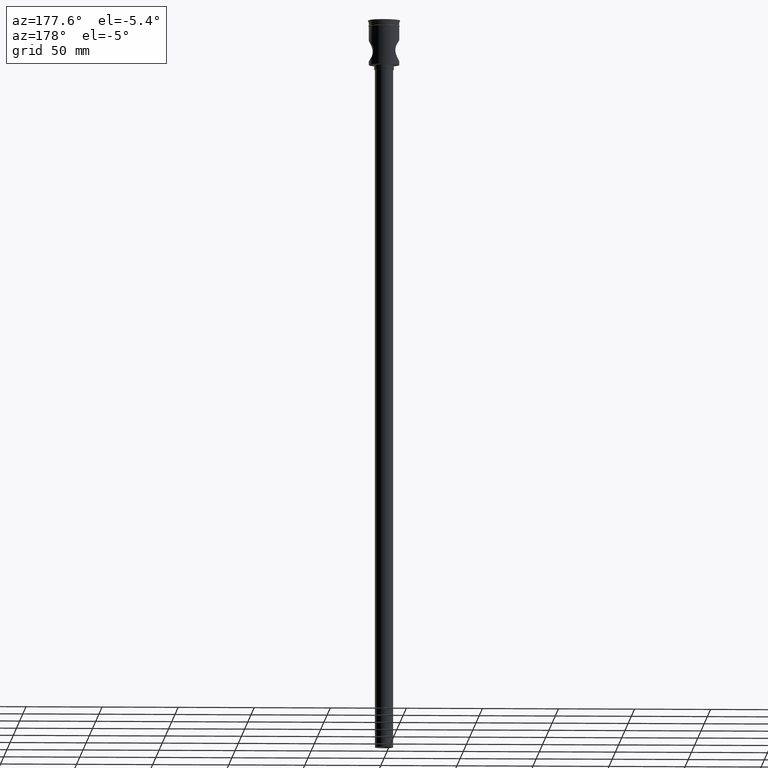
[diagram: clean part render]
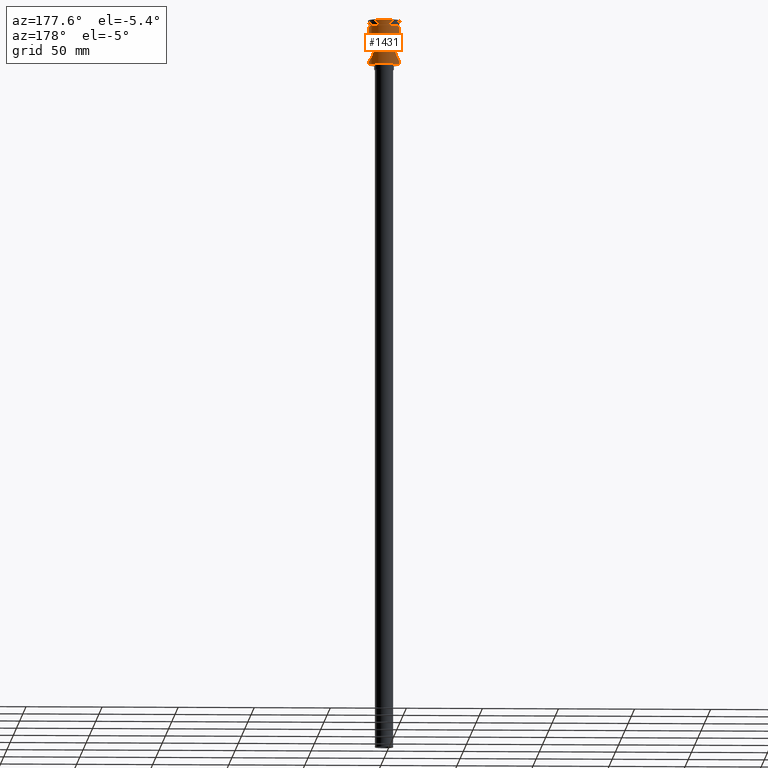
[diagram: same view with one face highlighted and labeled with its STEP entity id]
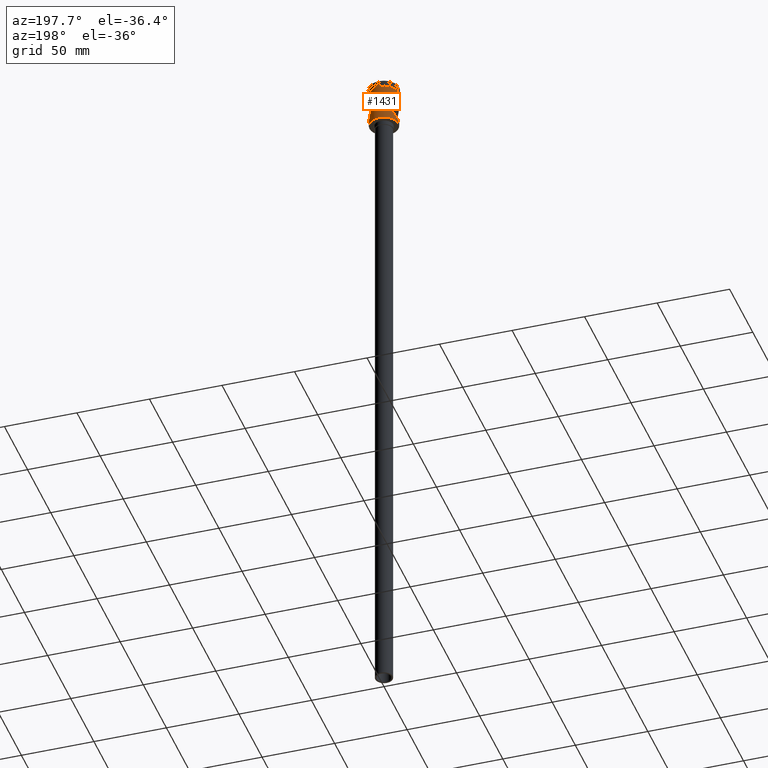
[diagram: same view with one face highlighted and labeled with its STEP entity id]
A machine part, auxiliary view. The second image highlights one B-rep face of the part: STEP entity #1431.
A second angle (auxiliary view) of the same face is appended — the face is thin or edge-on in the first view.
In plain terms, the highlighted cylindrical surface (edge-blend (fillet) strip) has radius 10 mm, axis along (-0, -0, 1).
Its self-contained STEP definition (entity closure, byte-faithful):
#1 = CARTESIAN_POINT ( 'NONE',  ( 7.495754172928653425, 6.623269820279323206, -17.68917710553390421 ) ) ;
#13 = CARTESIAN_POINT ( 'NONE',  ( 8.500359578522527215, 5.279417043634754947, -24.61763755135371312 ) ) ;
#14 = CARTESIAN_POINT ( 'NONE',  ( -7.500597748671954612, 6.614342876288898054, -17.69704926583546722 ) ) ;
#21 = ORIENTED_EDGE ( 'NONE', *, *, #403, .F. ) ;
#23 = CARTESIAN_POINT ( 'NONE',  ( 7.964400624432384390, 6.054727537725132613, -23.54044438658495508 ) ) ;
#24 = CARTESIAN_POINT ( 'NONE',  ( -7.141989287018506438, 6.999427809131203659, -20.49012689816927946 ) ) ;
#31 = CARTESIAN_POINT ( 'NONE',  ( 7.153700441637879770, 6.987541224765998926, -20.48080140017840733 ) ) ;
#39 = FACE_OUTER_BOUND ( 'NONE', #535, .T. ) ;
#59 = CARTESIAN_POINT ( 'NONE',  ( 7.967226261725709691, 6.044961550507583325, -16.46329765270407108 ) ) ;
#67 = CARTESIAN_POINT ( 'NONE',  ( 8.857763224790600631, 4.655166966848104160, -14.75332674821394185 ) ) ;
#93 = CARTESIAN_POINT ( 'NONE',  ( 9.999999999999994671, 0.000000000000000000, -27.00000000000001066 ) ) ;
#95 = CARTESIAN_POINT ( 'NONE',  ( -9.347318963212909892, 3.576349491498996613, -13.96584429441086250 ) ) ;
#101 = CARTESIAN_POINT ( 'NONE',  ( 9.999999999999994671, 0.000000000000000000, -27.00000000000001066 ) ) ;
#110 = CARTESIAN_POINT ( 'NONE',  ( 9.485754788391535186, 3.172574074835096791, -13.75608760595409663 ) ) ;
#116 = CARTESIAN_POINT ( 'NONE',  ( 9.493823586986472662, 3.171854784083770085, -26.25704949909892250 ) ) ;
#119 = CARTESIAN_POINT ( 'NONE',  ( 7.236111701560244747, 6.902383710959966834, -21.18811620976742915 ) ) ;
#124 = CARTESIAN_POINT ( 'NONE',  ( 7.503273641266415162, 6.611317046147628496, -22.31171733569519944 ) ) ;
#125 = B_SPLINE_CURVE_WITH_KNOTS ( 'NONE', 3,
 ( #101, #565, #933, #577, #703, #116, #1332, #852, #1076, #13, #1312, #23, #245, #134, #124, #1071, #1497, #119, #926, #31, #1210, #1051, #336, #613, #698, #1177, #1, #1059, #790, #59, #1470, #1123, #539, #67, #1468, #1355, #276, #110, #965, #1100, #369, #1319, #1115, #874, #1363, #295 ),
 .UNSPECIFIED., .F., .F.,
 ( 4, 2, 2, 2, 2, 2, 2, 2, 2, 2, 2, 2, 2, 2, 2, 2, 2, 2, 2, 2, 2, 2, 4 ),
 ( 0.000000000000000000, 0.001421073207666945183, 0.002842146415333890366, 0.004263219623000837066, 0.005684292830667782466, 0.007105366038334726998, 0.008526439246001672398, 0.009236975849835149868, 0.009947512453668627339, 0.01065804905750210654, 0.01136858566133558401, 0.01207912226516906322, 0.01278965886900253895, 0.01421073207666949390, 0.01492126868050296790, 0.01563180528433644190, 0.01705287849200338296, 0.01847395169967032749, 0.01918448830350380149, 0.01989502490733727202, 0.02131609811500421309, 0.02202663471883768362, 0.02273717132267115415 ),
 .UNSPECIFIED. ) ;
#129 = CIRCLE ( 'NONE', #635, 9.999999999999994671 ) ;
#134 = CARTESIAN_POINT ( 'NONE',  ( 7.573222039985391341, 6.531435267832768510, -22.52812481744788897 ) ) ;
#144 = CARTESIAN_POINT ( 'NONE',  ( -7.969012120586809189, 6.042611853496009822, -23.54072391938827735 ) ) ;
#182 = DIRECTION ( 'NONE',  ( -0.000000000000000000, -0.000000000000000000, 1.000000000000000000 ) ) ;
#204 = CARTESIAN_POINT ( 'NONE',  ( -9.999999999999992895, 0.2368473339933030442, -13.00000000000000355 ) ) ;
#222 = CARTESIAN_POINT ( 'NONE',  ( -10.00000000000000000, 1.224646799147353256E-15, -3.999999999999996447 ) ) ;
#228 = VECTOR ( 'NONE', #182, 1000.000000000000000 ) ;
#234 = CARTESIAN_POINT ( 'NONE',  ( -9.867116120145130509, 1.641278058953928198, -26.80890176429204885 ) ) ;
#241 = CARTESIAN_POINT ( 'NONE',  ( -9.999999999999994671, 1.224646799147352665E-15, 0.000000000000000000 ) ) ;
#245 = CARTESIAN_POINT ( 'NONE',  ( 7.796463043157196182, 6.266459839169562507, -23.15209899686185224 ) ) ;
#246 = CARTESIAN_POINT ( 'NONE',  ( -7.322655419112948927, 6.810500286563438976, -18.36528137380275538 ) ) ;
#251 = CARTESIAN_POINT ( 'NONE',  ( -8.056358060451357161, 5.926078000082595665, -23.73242365119358155 ) ) ;
#255 = CARTESIAN_POINT ( 'NONE',  ( -7.326263957022342233, 6.806624336356017935, -21.65073055260620905 ) ) ;
#271 = DIRECTION ( 'NONE',  ( -1.000000000000000000, 0.000000000000000000, 0.000000000000000000 ) ) ;
#276 = CARTESIAN_POINT ( 'NONE',  ( 9.343068346694408888, 3.570972421456893642, -13.97506645596566877 ) ) ;
#295 = CARTESIAN_POINT ( 'NONE',  ( 9.999999999999994671, -5.133226810943367768E-18, -13.00000000000000355 ) ) ;
#296 = CARTESIAN_POINT ( 'NONE',  ( 0.000000000000000000, 0.000000000000000000, -29.29999999999994387 ) ) ;
#316 = CARTESIAN_POINT ( 'NONE',  ( -9.736384942666980180, 2.323699784143521185, -13.38067151163704871 ) ) ;
#329 = CARTESIAN_POINT ( 'NONE',  ( 9.999999999999994671, -5.133226810943367768E-18, -13.00000000000000355 ) ) ;
#336 = CARTESIAN_POINT ( 'NONE',  ( 7.153235015771536531, 6.988014041043824953, -19.52714534028610061 ) ) ;
#343 = AXIS2_PLACEMENT_3D ( 'NONE', #807, #1282, #1292 ) ;
#344 = VECTOR ( 'NONE', #1453, 1000.000000000000000 ) ;
#350 = CARTESIAN_POINT ( 'NONE',  ( -7.574535355013248150, 6.529908853628296761, -22.53201108648862316 ) ) ;
#358 = EDGE_CURVE ( 'NONE', #464, #1266, #1117, .T. ) ;
#369 = CARTESIAN_POINT ( 'NONE',  ( 9.832512437962645180, 1.881659858244550509, -13.24107387809922898 ) ) ;
#383 = DIRECTION ( 'NONE',  ( 1.000000000000000000, 0.000000000000000000, 0.000000000000000000 ) ) ;
#384 = VERTEX_POINT ( 'NONE', #1243 ) ;
#389 = DIRECTION ( 'NONE',  ( -0.000000000000000000, -0.000000000000000000, 1.000000000000000000 ) ) ;
#394 = EDGE_CURVE ( 'NONE', #678, #384, #129, .T. ) ;
#403 = EDGE_CURVE ( 'NONE', #678, #726, #627, .T. ) ;
#434 = CARTESIAN_POINT ( 'NONE',  ( 9.999999999999994671, 0.000000000000000000, -29.29999999999994387 ) ) ;
#452 = AXIS2_PLACEMENT_3D ( 'NONE', #1351, #616, #383 ) ;
#464 = VERTEX_POINT ( 'NONE', #329 ) ;
#473 = CARTESIAN_POINT ( 'NONE',  ( -8.860185483737918588, 4.650373212660217526, -25.25064384002004658 ) ) ;
#477 = CARTESIAN_POINT ( 'NONE',  ( -7.505468983612143319, 6.608824641700789648, -22.31875249157933183 ) ) ;
#485 = CARTESIAN_POINT ( 'NONE',  ( -7.377383315084117932, 6.751497144694277530, -18.13709901651008494 ) ) ;
#533 = VECTOR ( 'NONE', #1109, 1000.000000000000000 ) ;
#535 = EDGE_LOOP ( 'NONE', ( #692, #538, #1187, #576, #1360, #669, #1103, #21 ) ) ;
#538 = ORIENTED_EDGE ( 'NONE', *, *, #1343, .T. ) ;
#539 = CARTESIAN_POINT ( 'NONE',  ( 8.498707828545162712, 5.282283036785497821, -15.38527946463393370 ) ) ;
#565 = CARTESIAN_POINT ( 'NONE',  ( 9.999999999999994671, 0.4814323775651360160, -27.00000000000000711 ) ) ;
#572 = CARTESIAN_POINT ( 'NONE',  ( -8.050554706296177088, 5.933943087171876130, -16.28011583648020988 ) ) ;
#576 = ORIENTED_EDGE ( 'NONE', *, *, #1060, .T. ) ;
#577 = CARTESIAN_POINT ( 'NONE',  ( 9.834047061028444503, 1.872933838790287631, -26.76115115372198616 ) ) ;
#591 = CARTESIAN_POINT ( 'NONE',  ( -7.802583678074495488, 6.256037095215747357, -23.14831442975813403 ) ) ;
#602 = CARTESIAN_POINT ( 'NONE',  ( -7.140877080678154520, 7.000562488098499792, -19.52635574343557323 ) ) ;
#613 = CARTESIAN_POINT ( 'NONE',  ( 7.199668910925416832, 6.940164191266630311, -19.05657392165621289 ) ) ;
#616 = DIRECTION ( 'NONE',  ( -0.000000000000000000, -0.000000000000000000, 1.000000000000000000 ) ) ;
#627 = LINE ( 'NONE', #1105, #228 ) ;
#635 = AXIS2_PLACEMENT_3D ( 'NONE', #296, #1356, #271 ) ;
#642 = CARTESIAN_POINT ( 'NONE',  ( -9.999999999999994671, 1.224646799147352665E-15, 0.000000000000000000 ) ) ;
#644 = VERTEX_POINT ( 'NONE', #1285 ) ;
#668 = CARTESIAN_POINT ( 'NONE',  ( -9.991596185262174856, 0.4736682493084680701, -13.01198930438258117 ) ) ;
#669 = ORIENTED_EDGE ( 'NONE', *, *, #358, .F. ) ;
#678 = VERTEX_POINT ( 'NONE', #434 ) ;
#692 = ORIENTED_EDGE ( 'NONE', *, *, #394, .T. ) ;
#696 = CARTESIAN_POINT ( 'NONE',  ( -9.492393824703034610, 3.176669941205828795, -13.74509325342724253 ) ) ;
#698 = CARTESIAN_POINT ( 'NONE',  ( 7.234464554488559962, 6.904114004842417884, -18.82145945963317857 ) ) ;
#703 = CARTESIAN_POINT ( 'NONE',  ( 9.735585976469911529, 2.326309258653758594, -26.61812786508321693 ) ) ;
#706 = CARTESIAN_POINT ( 'NONE',  ( -7.381411116935110428, 6.747102913955162151, -21.87877048370861743 ) ) ;
#719 = CARTESIAN_POINT ( 'NONE',  ( -9.494221684495640190, 3.170672659151728912, -26.25765240908376441 ) ) ;
#726 = VERTEX_POINT ( 'NONE', #93 ) ;
#729 = EDGE_CURVE ( 'NONE', #1266, #1179, #1010, .T. ) ;
#730 = LINE ( 'NONE', #642, #533 ) ;
#750 = CARTESIAN_POINT ( 'NONE',  ( 9.999999999999994671, 0.000000000000000000, 0.000000000000000000 ) ) ;
#764 = VECTOR ( 'NONE', #389, 1000.000000000000000 ) ;
#790 = CARTESIAN_POINT ( 'NONE',  ( 7.801002067758135539, 6.258004569467825462, -16.85560777748649386 ) ) ;
#796 = CARTESIAN_POINT ( 'NONE',  ( -9.028965068475375944, 4.317457269925931485, -14.47181101200376574 ) ) ;
#807 = CARTESIAN_POINT ( 'NONE',  ( 0.000000000000000000, 0.000000000000000000, -3.999999999999996447 ) ) ;
#811 = CARTESIAN_POINT ( 'NONE',  ( -9.932287513067288742, 1.185065133237715562, -13.09699146176595974 ) ) ;
#835 = CARTESIAN_POINT ( 'NONE',  ( -7.569330506494653221, 6.535933251526299337, -17.48356472559870411 ) ) ;
#845 = CARTESIAN_POINT ( 'NONE',  ( -8.322069302564289117, 5.553051878775062455, -24.28499264081531095 ) ) ;
#852 = CARTESIAN_POINT ( 'NONE',  ( 9.029024665842507957, 4.317593744654971033, -25.52832831042054806 ) ) ;
#874 = CARTESIAN_POINT ( 'NONE',  ( 9.991574020215791663, 0.4743472386555617204, -13.01202085301403777 ) ) ;
#897 = CARTESIAN_POINT ( 'NONE',  ( -9.999999999999994671, 1.229780025839397734E-15, -13.00000000000000355 ) ) ;
#907 = LINE ( 'NONE', #241, #344 ) ;
#918 = CARTESIAN_POINT ( 'NONE',  ( -8.315544161946238688, 5.562748588078728851, -15.72768175892419862 ) ) ;
#926 = CARTESIAN_POINT ( 'NONE',  ( 7.201179731105407100, 6.938600208746065867, -20.95536877560809330 ) ) ;
#933 = CARTESIAN_POINT ( 'NONE',  ( 9.965446655919850016, 0.9519641332654187327, -26.95088558220736630 ) ) ;
#943 = CARTESIAN_POINT ( 'NONE',  ( -9.035512705743391493, 4.303590503429356673, -25.53881697926559013 ) ) ;
#948 = CARTESIAN_POINT ( 'NONE',  ( -9.675488818793542833, 2.536388918100093370, -26.52836702033825489 ) ) ;
#954 = CARTESIAN_POINT ( 'NONE',  ( -7.189382404875349408, 6.951946978929631094, -19.05590796920064633 ) ) ;
#959 = CARTESIAN_POINT ( 'NONE',  ( -9.999999999999996447, 0.000000000000000000, -27.00000000000000355 ) ) ;
#965 = CARTESIAN_POINT ( 'NONE',  ( 9.553141715981873006, 2.964211287661889571, -13.65436461758242181 ) ) ;
#966 = CARTESIAN_POINT ( 'NONE',  ( -8.503943671969903306, 5.273689396165736731, -24.62422230267287304 ) ) ;
#1010 = CIRCLE ( 'NONE', #343, 9.999999999999998224 ) ;
#1050 = CARTESIAN_POINT ( 'NONE',  ( -7.963207023572478782, 6.050255927956311730, -16.47232531239752262 ) ) ;
#1051 = CARTESIAN_POINT ( 'NONE',  ( 7.141373392009660925, 7.000056148497767694, -19.76373034873126144 ) ) ;
#1057 = CARTESIAN_POINT ( 'NONE',  ( -9.351609315107900500, 3.564938189428367377, -26.04074502495870647 ) ) ;
#1059 = CARTESIAN_POINT ( 'NONE',  ( 7.720495804876724044, 6.356685689900112735, -17.05985571267803991 ) ) ;
#1060 = EDGE_CURVE ( 'NONE', #1209, #1179, #907, .T. ) ;
#1071 = CARTESIAN_POINT ( 'NONE',  ( 7.379165411094851912, 6.749558967525724817, -21.87002777218119931 ) ) ;
#1076 = CARTESIAN_POINT ( 'NONE',  ( 8.856372138511654057, 4.657577678256724418, -25.24421500772974269 ) ) ;
#1086 = CARTESIAN_POINT ( 'NONE',  ( -7.723089038241832682, 6.353518016691833914, -22.94679462982522722 ) ) ;
#1100 = CARTESIAN_POINT ( 'NONE',  ( 9.735967975428478027, 2.325336189795355502, -13.38128717480536345 ) ) ;
#1103 = ORIENTED_EDGE ( 'NONE', *, *, #1142, .F. ) ;
#1105 = CARTESIAN_POINT ( 'NONE',  ( 9.999999999999994671, 0.000000000000000000, 0.000000000000000000 ) ) ;
#1109 = DIRECTION ( 'NONE',  ( -0.000000000000000000, -0.000000000000000000, 1.000000000000000000 ) ) ;
#1115 = CARTESIAN_POINT ( 'NONE',  ( 9.957729828106900882, 0.9487746701410815220, -13.06049825370512707 ) ) ;
#1117 = LINE ( 'NONE', #750, #764 ) ;
#1123 = CARTESIAN_POINT ( 'NONE',  ( 8.316470757484857756, 5.561257273121390732, -15.72607428983809008 ) ) ;
#1126 = CYLINDRICAL_SURFACE ( 'NONE', #452, 9.999999999999994671 ) ;
#1142 = EDGE_CURVE ( 'NONE', #726, #464, #125, .T. ) ;
#1148 = CARTESIAN_POINT ( 'NONE',  ( -9.957864273581446213, 0.9472565907286251141, -13.06030547907275796 ) ) ;
#1176 = CARTESIAN_POINT ( 'NONE',  ( -8.853430568094132980, 4.663155653245508070, -14.76073180007297125 ) ) ;
#1177 = CARTESIAN_POINT ( 'NONE',  ( 7.368839572955796058, 6.761454996973014886, -18.12764364703029329 ) ) ;
#1179 = VERTEX_POINT ( 'NONE', #222 ) ;
#1186 = CARTESIAN_POINT ( 'NONE',  ( -9.826638545464753349, 1.868062541291059642, -26.75021854738501759 ) ) ;
#1187 = ORIENTED_EDGE ( 'NONE', *, *, #1224, .F. ) ;
#1203 = CARTESIAN_POINT ( 'NONE',  ( -7.191763660842745765, 6.949507115151161152, -20.96152780032075569 ) ) ;
#1209 = VERTEX_POINT ( 'NONE', #897 ) ;
#1210 = CARTESIAN_POINT ( 'NONE',  ( 7.141483849871202771, 6.999943458932625262, -20.23958506209359243 ) ) ;
#1224 = EDGE_CURVE ( 'NONE', #1209, #644, #1348, .T. ) ;
#1243 = CARTESIAN_POINT ( 'NONE',  ( -9.999999999999994671, 1.224646799147352665E-15, -29.29999999999994387 ) ) ;
#1265 = CARTESIAN_POINT ( 'NONE',  ( -9.999999999999994671, 1.229780025839397734E-15, -13.00000000000000355 ) ) ;
#1266 = VERTEX_POINT ( 'NONE', #1451 ) ;
#1276 = CARTESIAN_POINT ( 'NONE',  ( -8.497179343882921287, 5.284524261307590010, -15.38819392766633243 ) ) ;
#1282 = DIRECTION ( 'NONE',  ( -0.000000000000000000, -0.000000000000000000, 1.000000000000000000 ) ) ;
#1285 = CARTESIAN_POINT ( 'NONE',  ( -9.999999999999996447, 0.000000000000000000, -27.00000000000000355 ) ) ;
#1292 = DIRECTION ( 'NONE',  ( 1.000000000000000000, 0.000000000000000000, 0.000000000000000000 ) ) ;
#1295 = CARTESIAN_POINT ( 'NONE',  ( -9.832878540591766026, 1.879722866531852610, -13.24054240779419089 ) ) ;
#1312 = CARTESIAN_POINT ( 'NONE',  ( 8.315624236750037923, 5.562535070965512141, -24.27231501587448292 ) ) ;
#1319 = CARTESIAN_POINT ( 'NONE',  ( 9.932071413309429886, 1.186883990593142979, -13.09730212679606964 ) ) ;
#1322 = CARTESIAN_POINT ( 'NONE',  ( -7.717429328536875133, 6.360383034377457001, -17.06803860621227287 ) ) ;
#1326 = CARTESIAN_POINT ( 'NONE',  ( -9.999999999999998224, 0.4807969081117817733, -27.00000000000001066 ) ) ;
#1332 = CARTESIAN_POINT ( 'NONE',  ( 9.349377247001186220, 3.571280898155820172, -26.03738208151085587 ) ) ;
#1343 = EDGE_CURVE ( 'NONE', #384, #644, #730, .T. ) ;
#1348 = B_SPLINE_CURVE_WITH_KNOTS ( 'NONE', 3,
 ( #1265, #204, #668, #1148, #811, #1295, #316, #696, #95, #796, #1176, #1276, #918, #572, #1050, #1534, #1322, #835, #14, #485, #246, #954, #602, #24, #1203, #255, #706, #477, #350, #1086, #591, #144, #251, #845, #966, #473, #943, #1057, #719, #948, #1432, #1186, #234, #1436, #1326, #959 ),
 .UNSPECIFIED., .F., .F.,
 ( 4, 2, 2, 2, 2, 2, 2, 2, 2, 2, 2, 2, 2, 2, 2, 2, 2, 2, 2, 2, 2, 2, 4 ),
 ( 0.02273717132267112292, 0.02344677004960169994, 0.02415636877653227696, 0.02557556623039343099, 0.02699476368425458156, 0.02841396113811573559, 0.02983315859197688963, 0.03054275731890747012, 0.03125235604583804366, 0.03196195477276862762, 0.03267155349969920464, 0.03409075095356035867, 0.03550994840742151271, 0.03621954713435208278, 0.03692914586128265980, 0.03763874458821323682, 0.03834834331514381384, 0.03976754076900496787, 0.04118673822286612884, 0.04260593567672728288, 0.04331553440365785990, 0.04402513313058842997, 0.04544433058444957707 ),
 .UNSPECIFIED. ) ;
#1351 = CARTESIAN_POINT ( 'NONE',  ( 0.000000000000000000, 0.000000000000000000, 0.000000000000000000 ) ) ;
#1355 = CARTESIAN_POINT ( 'NONE',  ( 9.267396788860448709, 3.762388530127553476, -14.09286872329777474 ) ) ;
#1356 = DIRECTION ( 'NONE',  ( -0.000000000000000000, -0.000000000000000000, 1.000000000000000000 ) ) ;
#1360 = ORIENTED_EDGE ( 'NONE', *, *, #729, .F. ) ;
#1363 = CARTESIAN_POINT ( 'NONE',  ( 9.999999999999996447, 0.2371603752032602208, -13.00000000000000711 ) ) ;
#1431 = ADVANCED_FACE ( 'NONE', ( #39 ), #1126, .T. ) ;
#1432 = CARTESIAN_POINT ( 'NONE',  ( -9.730782946235683184, 2.316105786581691639, -26.60989879506474054 ) ) ;
#1436 = CARTESIAN_POINT ( 'NONE',  ( -9.965325511264431668, 0.9525671816038204787, -26.95070955909274346 ) ) ;
#1451 = CARTESIAN_POINT ( 'NONE',  ( 9.999999999999998224, 0.000000000000000000, -3.999999999999996447 ) ) ;
#1453 = DIRECTION ( 'NONE',  ( -0.000000000000000000, -0.000000000000000000, 1.000000000000000000 ) ) ;
#1468 = CARTESIAN_POINT ( 'NONE',  ( 9.029975738911995009, 4.315133941133939999, -14.47019995321800323 ) ) ;
#1470 = CARTESIAN_POINT ( 'NONE',  ( 8.053311715077979827, 5.930176009131115755, -16.27420902905398137 ) ) ;
#1497 = CARTESIAN_POINT ( 'NONE',  ( 7.325106434378655607, 6.807865243658028476, -21.64544578927129237 ) ) ;
#1534 = CARTESIAN_POINT ( 'NONE',  ( -7.796802139286405087, 6.263237125868982069, -16.86600156342442602 ) ) ;